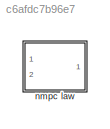
MODEL slx_c6afdc7b96e7
KIND model
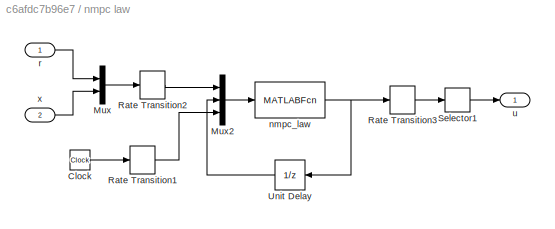
BLOCK [SubSystem] nmpc law
  Ports = [2, 1]
  RequestExecContextInheritance = off
BLOCK [Clock] nmpc law/Clock
BLOCK [Mux] nmpc law/Mux
  DisplayOption = bar
  Inputs = 2
  Ports = [2, 1]
BLOCK [Mux] nmpc law/Mux2
  DisplayOption = bar
  Inputs = 3
  Ports = [3, 1]
BLOCK [RateTransition] nmpc law/Rate Transition1
  OutPortSampleTime = K.Ts
BLOCK [RateTransition] nmpc law/Rate Transition2
  OutPortSampleTime = K.Ts
BLOCK [RateTransition] nmpc law/Rate Transition3
  OutPortSampleTime = 0
BLOCK [Selector] nmpc law/Selector1
  IndexOptions = Index vector (dialog)
  Indices = 1:K.nu
  InputPortWidth = K.nc
  OutputSizes = 1
  Ports = [1, 1]
BLOCK [UnitDelay] nmpc law/Unit Delay
  HasFrameUpgradeWarning = on
  InitialCondition = zeros(K.nc,1)
  SampleTime = K.Ts
BLOCK [MATLABFcn] nmpc law/nmpc_law
  MATLABFcn = nmpc_law(K,u)
  OutputDimensions = K.nc
  Ports = [1, 1]
BLOCK [Inport] nmpc law/r
  IconDisplay = Port number
BLOCK [Outport] nmpc law/u
  IconDisplay = Port number
BLOCK [Inport] nmpc law/x
  IconDisplay = Port number
  Port = 2
LINE nmpc law/Clock:1 -> nmpc law/Rate Transition1:1
LINE nmpc law/Mux2:1 -> nmpc law/nmpc_law:1
LINE nmpc law/Mux:1 -> nmpc law/Rate Transition2:1
LINE nmpc law/Rate Transition1:1 -> nmpc law/Mux2:3
LINE nmpc law/Rate Transition2:1 -> nmpc law/Mux2:1
LINE nmpc law/Rate Transition3:1 -> nmpc law/Selector1:1
LINE nmpc law/Selector1:1 -> nmpc law/u:1
LINE nmpc law/Unit Delay:1 -> nmpc law/Mux2:2
NET nmpc law/nmpc_law:1 -> nmpc law/Rate Transition3:1, nmpc law/Unit Delay:1
LINE nmpc law/r:1 -> nmpc law/Mux:1
LINE nmpc law/x:1 -> nmpc law/Mux:2
note: NET lines group one-source signal fan-out (src -> all destinations, sorted); 1:1 wires keep LINE
